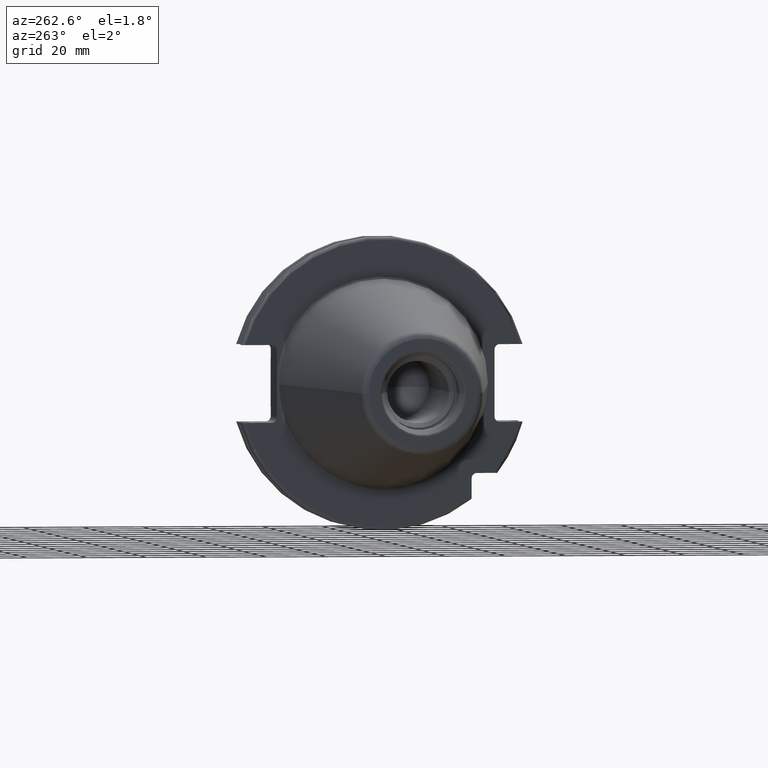
[diagram: clean part render]
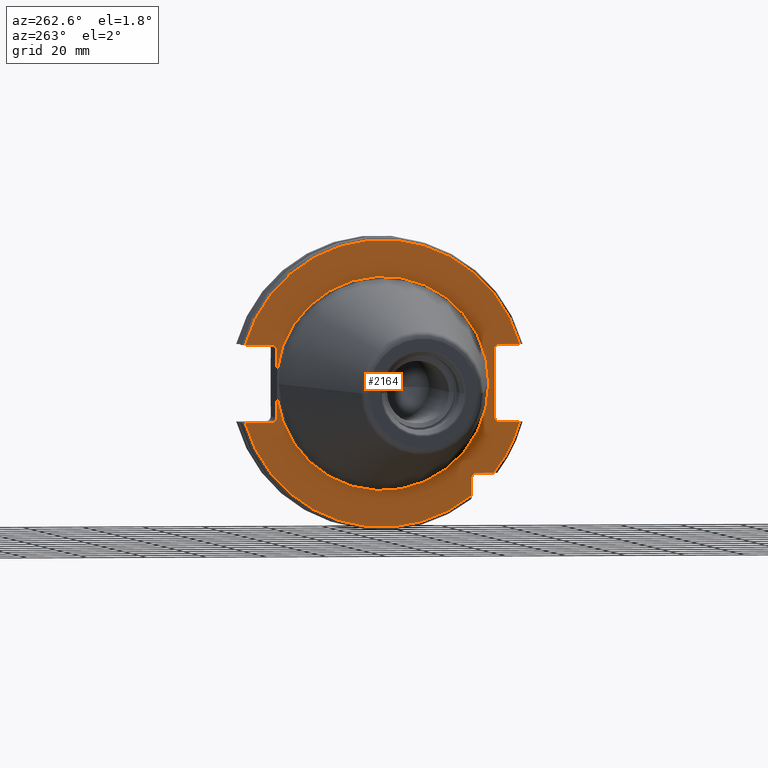
[diagram: same view with one face highlighted and labeled with its STEP entity id]
A machine part, auxiliary view. The second image highlights one B-rep face of the part: STEP entity #2164.
In plain terms, the highlighted planar face has unit normal (1, 0, 0).
Its self-contained STEP definition (entity closure, byte-faithful):
#105=CARTESIAN_POINT('',(3.2E0,3.53E1,-4.414818795828E0));
#117=CARTESIAN_POINT('',(3.2E0,0.E0,0.E0));
#118=DIRECTION('',(-1.E0,0.E0,0.E0));
#119=DIRECTION('',(0.E0,9.922698524245E-1,-1.240989120402E-1));
#120=AXIS2_PLACEMENT_3D('',#117,#118,#119);
#131=CARTESIAN_POINT('',(3.2E0,3.705E1,-1.115E1));
#132=DIRECTION('',(1.E0,0.E0,0.E0));
#133=DIRECTION('',(0.E0,-1.E0,0.E0));
#134=AXIS2_PLACEMENT_3D('',#131,#132,#133);
#257=CARTESIAN_POINT('',(3.2E0,3.705E1,1.115E1));
#258=DIRECTION('',(1.E0,0.E0,0.E0));
#259=DIRECTION('',(0.E0,0.E0,1.E0));
#260=AXIS2_PLACEMENT_3D('',#257,#258,#259);
#302=CARTESIAN_POINT('',(3.2E0,-3.925E1,1.115E1));
#303=DIRECTION('',(1.E0,0.E0,0.E0));
#304=DIRECTION('',(0.E0,1.E0,0.E0));
#305=AXIS2_PLACEMENT_3D('',#302,#303,#304);
#307=DIRECTION('',(0.E0,1.E0,0.E0));
#308=VECTOR('',#307,6.711493733886E0);
#309=CARTESIAN_POINT('',(3.2E0,-4.596149373389E1,1.29E1));
#310=LINE('',#309,#308);
#311=DIRECTION('',(0.E0,0.E0,1.E0));
#312=VECTOR('',#311,2.23E1);
#313=CARTESIAN_POINT('',(3.2E0,-3.75E1,-1.115E1));
#314=LINE('',#313,#312);
#315=DIRECTION('',(0.E0,1.E0,0.E0));
#316=VECTOR('',#315,6.711493733886E0);
#317=CARTESIAN_POINT('',(3.2E0,-4.596149373389E1,-1.29E1));
#318=LINE('',#317,#316);
#319=CARTESIAN_POINT('',(3.2E0,0.E0,0.E0));
#320=DIRECTION('',(-1.E0,0.E0,0.E0));
#321=DIRECTION('',(0.E0,-7.803888060170E-1,-6.252945797329E-1));
#322=AXIS2_PLACEMENT_3D('',#319,#320,#321);
#324=DIRECTION('',(0.E0,-1.E0,0.E0));
#325=VECTOR('',#324,5.653810627237E0);
#326=CARTESIAN_POINT('',(3.2E0,-3.16E1,-2.985E1));
#327=LINE('',#326,#325);
#328=DIRECTION('',(0.E0,0.E0,1.E0));
#329=VECTOR('',#328,5.653810627237E0);
#330=CARTESIAN_POINT('',(3.2E0,-2.985E1,-3.725381062724E1));
#331=LINE('',#330,#329);
#332=CARTESIAN_POINT('',(3.2E0,0.E0,0.E0));
#333=DIRECTION('',(-1.E0,0.E0,0.E0));
#334=DIRECTION('',(0.E0,9.627964123359E-1,-2.702278083268E-1));
#335=AXIS2_PLACEMENT_3D('',#332,#333,#334);
#337=DIRECTION('',(0.E0,-1.E0,0.E0));
#338=VECTOR('',#337,8.911493733886E0);
#339=CARTESIAN_POINT('',(3.2E0,4.596149373389E1,-1.29E1));
#340=LINE('',#339,#338);
#341=DIRECTION('',(0.E0,0.E0,-1.E0));
#342=VECTOR('',#341,6.735181204172E0);
#343=CARTESIAN_POINT('',(3.2E0,3.53E1,-4.414818795828E0));
#344=LINE('',#343,#342);
#345=DIRECTION('',(0.E0,0.E0,-1.E0));
#346=VECTOR('',#345,6.735181204172E0);
#347=CARTESIAN_POINT('',(3.2E0,3.53E1,1.115E1));
#348=LINE('',#347,#346);
#349=DIRECTION('',(0.E0,-1.E0,0.E0));
#350=VECTOR('',#349,8.911493733886E0);
#351=CARTESIAN_POINT('',(3.2E0,4.596149373389E1,1.29E1));
#352=LINE('',#351,#350);
#353=CARTESIAN_POINT('',(3.2E0,0.E0,0.E0));
#354=DIRECTION('',(1.E0,0.E0,0.E0));
#355=DIRECTION('',(0.E0,9.627964123359E-1,2.702278083268E-1));
#356=AXIS2_PLACEMENT_3D('',#353,#354,#355);
#363=CARTESIAN_POINT('',(3.2E0,-3.925E1,-1.115E1));
#364=DIRECTION('',(1.E0,0.E0,0.E0));
#365=DIRECTION('',(0.E0,0.E0,-1.E0));
#366=AXIS2_PLACEMENT_3D('',#363,#364,#365);
#429=CARTESIAN_POINT('',(3.2E0,4.596149373389E1,-1.29E1));
#464=CARTESIAN_POINT('',(3.2E0,-4.596149373389E1,-1.29E1));
#471=CARTESIAN_POINT('',(3.2E0,-3.725381062724E1,-2.985E1));
#491=CARTESIAN_POINT('',(3.2E0,-3.16E1,-3.16E1));
#492=DIRECTION('',(1.E0,0.E0,0.E0));
#493=DIRECTION('',(0.E0,1.E0,0.E0));
#494=AXIS2_PLACEMENT_3D('',#491,#492,#493);
#808=CARTESIAN_POINT('',(3.2E0,4.596149373389E1,1.29E1));
#815=CARTESIAN_POINT('',(3.2E0,-4.596149373389E1,1.29E1));
#998=CARTESIAN_POINT('',(3.2E0,3.53E1,4.414818795828E0));
#1009=CARTESIAN_POINT('',(3.2E0,0.E0,0.E0));
#1010=DIRECTION('',(1.E0,0.E0,0.E0));
#1011=DIRECTION('',(0.E0,9.922698524245E-1,1.240989120402E-1));
#1012=AXIS2_PLACEMENT_3D('',#1009,#1010,#1011);
#1461=CARTESIAN_POINT('',(3.2E0,-3.5575E1,0.E0));
#1463=VERTEX_POINT('',#1461);
#1587=VERTEX_POINT('',#998);
#1589=VERTEX_POINT('',#105);
#1592=VERTEX_POINT('',#808);
#1593=VERTEX_POINT('',#815);
#1596=VERTEX_POINT('',#429);
#1597=VERTEX_POINT('',#464);
#1620=CARTESIAN_POINT('',(3.2E0,-2.985E1,-3.725381062724E1));
#1621=VERTEX_POINT('',#1620);
#1623=CARTESIAN_POINT('',(3.2E0,-3.75E1,-1.115E1));
#1625=VERTEX_POINT('',#1623);
#1627=CARTESIAN_POINT('',(3.2E0,-3.925E1,-1.29E1));
#1629=VERTEX_POINT('',#1627);
#1631=CARTESIAN_POINT('',(3.2E0,-3.925E1,1.29E1));
#1633=VERTEX_POINT('',#1631);
#1635=CARTESIAN_POINT('',(3.2E0,-3.75E1,1.115E1));
#1637=VERTEX_POINT('',#1635);
#1639=CARTESIAN_POINT('',(3.2E0,3.705E1,1.29E1));
#1641=VERTEX_POINT('',#1639);
#1643=CARTESIAN_POINT('',(3.2E0,3.705E1,-1.29E1));
#1645=VERTEX_POINT('',#1643);
#1646=CARTESIAN_POINT('',(3.2E0,3.53E1,1.115E1));
#1647=VERTEX_POINT('',#1646);
#1648=CARTESIAN_POINT('',(3.2E0,3.53E1,-1.115E1));
#1649=VERTEX_POINT('',#1648);
#1654=CARTESIAN_POINT('',(3.2E0,-2.985E1,-3.16E1));
#1655=CARTESIAN_POINT('',(3.2E0,-3.16E1,-2.985E1));
#1656=VERTEX_POINT('',#1654);
#1657=VERTEX_POINT('',#1655);
#1724=VERTEX_POINT('',#471);
#2128=CARTESIAN_POINT('',(3.2E0,0.E0,0.E0));
#2129=DIRECTION('',(1.E0,0.E0,0.E0));
#2130=DIRECTION('',(0.E0,-1.E0,0.E0));
#2131=AXIS2_PLACEMENT_3D('',#2128,#2129,#2130);
#2132=PLANE('',#2131);
#2133=ORIENTED_EDGE('',*,*,#2088,.T.);
#2134=ORIENTED_EDGE('',*,*,#2123,.F.);
#2135=ORIENTED_EDGE('',*,*,#1994,.F.);
#2137=ORIENTED_EDGE('',*,*,#2136,.F.);
#2139=ORIENTED_EDGE('',*,*,#2138,.F.);
#2141=ORIENTED_EDGE('',*,*,#2140,.F.);
#2143=ORIENTED_EDGE('',*,*,#2142,.F.);
#2145=ORIENTED_EDGE('',*,*,#2144,.F.);
#2147=ORIENTED_EDGE('',*,*,#2146,.F.);
#2149=ORIENTED_EDGE('',*,*,#2148,.F.);
#2151=ORIENTED_EDGE('',*,*,#2150,.T.);
#2152=ORIENTED_EDGE('',*,*,#1905,.F.);
#2153=ORIENTED_EDGE('',*,*,#1890,.F.);
#2154=ORIENTED_EDGE('',*,*,#1867,.T.);
#2156=ORIENTED_EDGE('',*,*,#2155,.F.);
#2157=ORIENTED_EDGE('',*,*,#1885,.F.);
#2158=ORIENTED_EDGE('',*,*,#2028,.F.);
#2159=ORIENTED_EDGE('',*,*,#2062,.F.);
#2161=ORIENTED_EDGE('',*,*,#2160,.T.);
#2162=EDGE_LOOP('',(#2133,#2134,#2135,#2137,#2139,#2141,#2143,#2145,#2147,#2149,
#2151,#2152,#2153,#2154,#2156,#2157,#2158,#2159,#2161));
#2163=FACE_OUTER_BOUND('',#2162,.F.);
#2164=ADVANCED_FACE('',(#2163),#2132,.F.);
#121=CIRCLE('',#120,3.5575E1);
#135=CIRCLE('',#134,1.75E0);
#261=CIRCLE('',#260,1.75E0);
#306=CIRCLE('',#305,1.75E0);
#323=CIRCLE('',#322,4.77375E1);
#336=CIRCLE('',#335,4.77375E1);
#357=CIRCLE('',#356,4.77375E1);
#367=CIRCLE('',#366,1.75E0);
#495=CIRCLE('',#494,1.75E0);
#1013=CIRCLE('',#1012,3.5575E1);
#1867=EDGE_CURVE('',#1589,#1463,#121,.T.);
#1885=EDGE_CURVE('',#1647,#1587,#348,.T.);
#1890=EDGE_CURVE('',#1589,#1649,#344,.T.);
#1905=EDGE_CURVE('',#1649,#1645,#135,.T.);
#1994=EDGE_CURVE('',#1625,#1637,#314,.T.);
#2028=EDGE_CURVE('',#1641,#1647,#261,.T.);
#2062=EDGE_CURVE('',#1592,#1641,#352,.T.);
#2088=EDGE_CURVE('',#1593,#1633,#310,.T.);
#2123=EDGE_CURVE('',#1637,#1633,#306,.T.);
#2136=EDGE_CURVE('',#1629,#1625,#367,.T.);
#2138=EDGE_CURVE('',#1597,#1629,#318,.T.);
#2140=EDGE_CURVE('',#1724,#1597,#323,.T.);
#2142=EDGE_CURVE('',#1657,#1724,#327,.T.);
#2144=EDGE_CURVE('',#1656,#1657,#495,.T.);
#2146=EDGE_CURVE('',#1621,#1656,#331,.T.);
#2148=EDGE_CURVE('',#1596,#1621,#336,.T.);
#2150=EDGE_CURVE('',#1596,#1645,#340,.T.);
#2155=EDGE_CURVE('',#1587,#1463,#1013,.T.);
#2160=EDGE_CURVE('',#1592,#1593,#357,.T.);